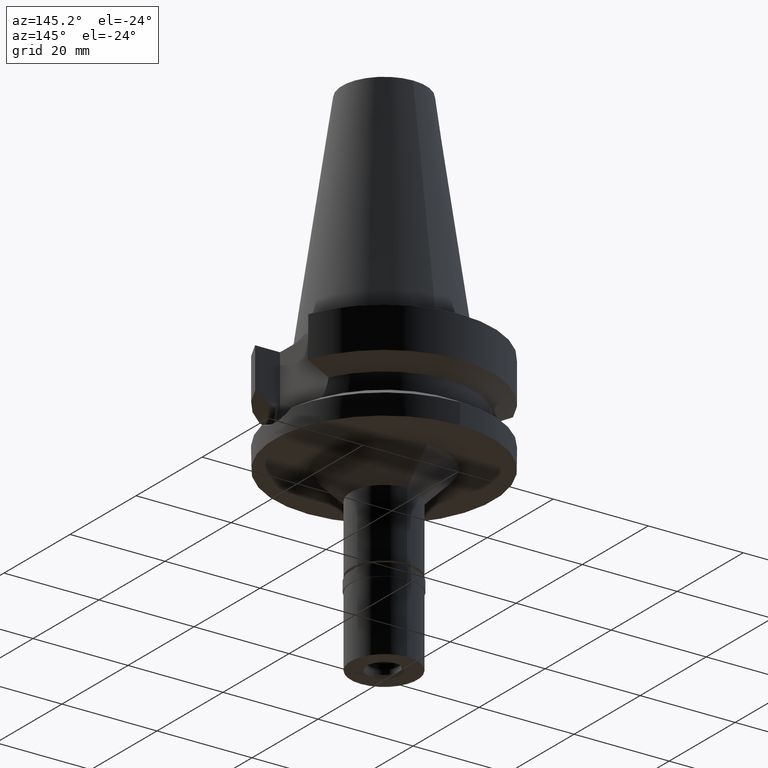
[diagram: clean part render]
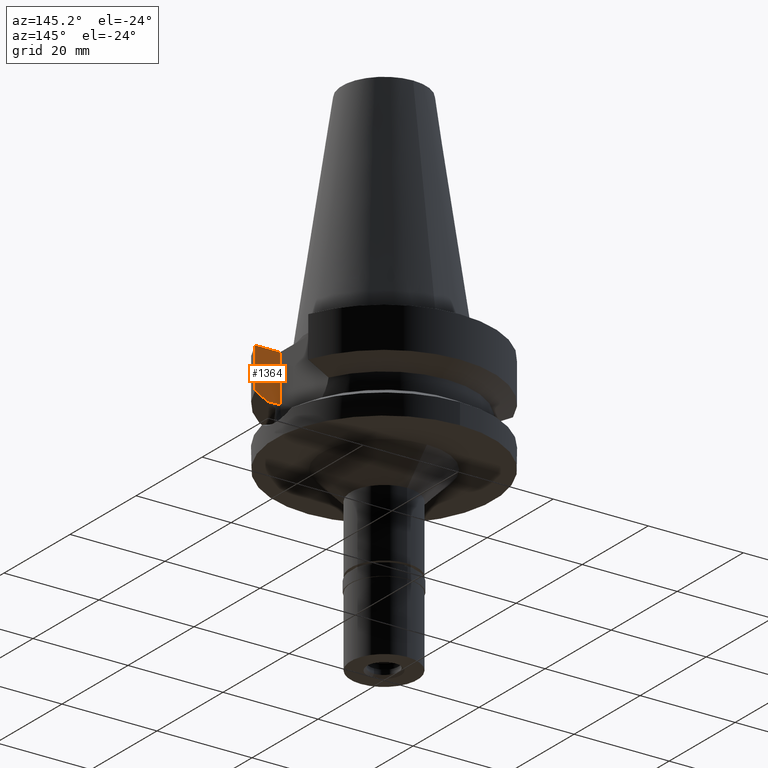
[diagram: same view with one face highlighted and labeled with its STEP entity id]
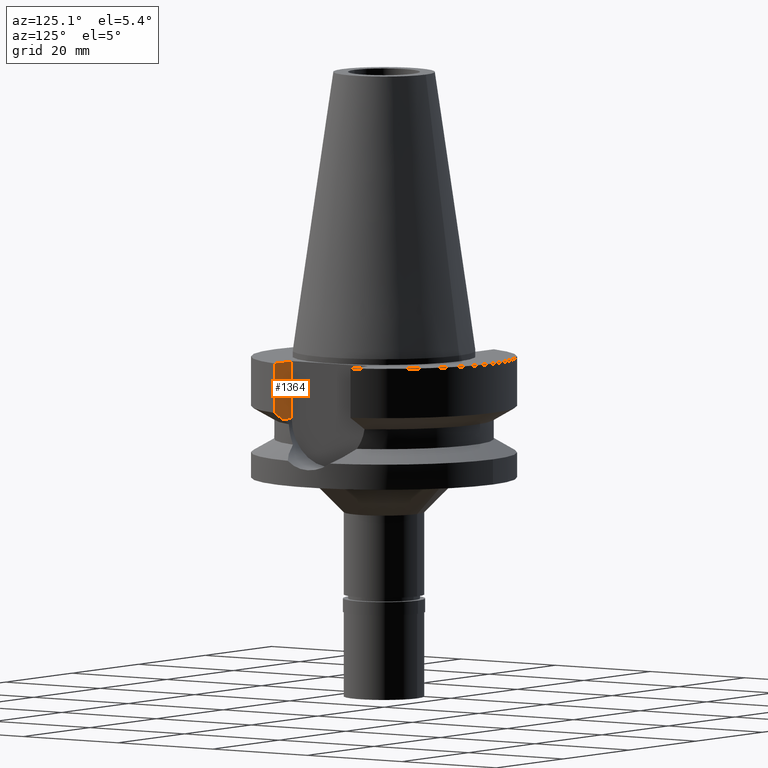
[diagram: same view with one face highlighted and labeled with its STEP entity id]
A machine part, auxiliary view. The second image highlights one B-rep face of the part: STEP entity #1364.
A second angle (auxiliary view) of the same face is appended — the face is thin or edge-on in the first view.
In plain terms, the highlighted planar face has unit normal (0, -1, 0).
Its self-contained STEP definition (entity closure, byte-faithful):
#58 = VECTOR ( 'NONE', #652, 1000.000000000000227 ) ;
#341 = PLANE ( 'NONE',  #821 ) ;
#401 = CARTESIAN_POINT ( 'NONE',  ( 16.29999999999999716, -8.050000000000000711, -1.000000000000000000 ) ) ;
#406 = VERTEX_POINT ( 'NONE', #1494 ) ;
#519 = LINE ( 'NONE', #401, #2084 ) ;
#527 = CARTESIAN_POINT ( 'NONE',  ( 21.54715579650000024, -8.050000000000000711, -1.000000000000000000 ) ) ;
#563 = ORIENTED_EDGE ( 'NONE', *, *, #2812, .T. ) ;
#578 = EDGE_CURVE ( 'NONE', #1314, #1425, #1211, .T. ) ;
#628 = CARTESIAN_POINT ( 'NONE',  ( 21.54715579650000024, -8.050000000000000711, -9.567208369710998639 ) ) ;
#652 = DIRECTION ( 'NONE',  ( -0.9999999999998817612, 4.787399937350908582E-07, -8.413513955626847325E-08 ) ) ;
#780 = CARTESIAN_POINT ( 'NONE',  ( 21.54715579650000024, -8.050000000000000711, -9.567208369710998639 ) ) ;
#821 = AXIS2_PLACEMENT_3D ( 'NONE', #2663, #2148, #2881 ) ;
#833 = CARTESIAN_POINT ( 'NONE',  ( 18.96930827810999887, -8.050001277905000308, -10.94999977541999847 ) ) ;
#840 = VECTOR ( 'NONE', #2364, 1000.000000000000000 ) ;
#989 = EDGE_CURVE ( 'NONE', #2257, #1604, #2214, .T. ) ;
#1010 = CARTESIAN_POINT ( 'NONE',  ( 16.29999999999999716, -8.050000000000000711, -1.000000000000000000 ) ) ;
#1033 = EDGE_LOOP ( 'NONE', ( #563, #1177, #2801, #1227, #1734 ) ) ;
#1034 = CARTESIAN_POINT ( 'NONE',  ( 19.78370350314376935, -8.050001299768915430, -10.51717019556136457 ) ) ;
#1044 = DIRECTION ( 'NONE',  ( 1.000000000000000000, 0.0000000000000000000, 0.0000000000000000000 ) ) ;
#1177 = ORIENTED_EDGE ( 'NONE', *, *, #578, .T. ) ;
#1211 = LINE ( 'NONE', #1697, #840 ) ;
#1227 = ORIENTED_EDGE ( 'NONE', *, *, #989, .T. ) ;
#1314 = VERTEX_POINT ( 'NONE', #2774 ) ;
#1361 = CARTESIAN_POINT ( 'NONE',  ( 21.54715579650000024, -8.050000000000000711, -1.000000000000000000 ) ) ;
#1364 = ADVANCED_FACE ( 'NONE', ( #2807 ), #341, .F. ) ;
#1425 = VERTEX_POINT ( 'NONE', #1010 ) ;
#1489 = B_SPLINE_CURVE_WITH_KNOTS ( 'NONE', 3,
 ( #833, #1034, #2830, #628 ),
 .UNSPECIFIED., .F., .F.,
 ( 4, 4 ),
 ( 0.0000000000000000000, 1.000000000000000000 ),
 .UNSPECIFIED. ) ;
#1494 = CARTESIAN_POINT ( 'NONE',  ( 18.96930827810999887, -8.050001277905000308, -10.94999977541999847 ) ) ;
#1509 = LINE ( 'NONE', #1988, #58 ) ;
#1604 = VERTEX_POINT ( 'NONE', #780 ) ;
#1697 = CARTESIAN_POINT ( 'NONE',  ( 16.29999999999999716, -8.050000000000000711, -10.94999999999999929 ) ) ;
#1734 = ORIENTED_EDGE ( 'NONE', *, *, #2091, .F. ) ;
#1952 = EDGE_CURVE ( 'NONE', #1425, #2257, #519, .T. ) ;
#1988 = CARTESIAN_POINT ( 'NONE',  ( 18.96930827810999887, -8.050001277905000308, -10.94999977541999847 ) ) ;
#2084 = VECTOR ( 'NONE', #1044, 1000.000000000000000 ) ;
#2091 = EDGE_CURVE ( 'NONE', #406, #1604, #1489, .T. ) ;
#2148 = DIRECTION ( 'NONE',  ( 0.0000000000000000000, -1.000000000000000000, 0.0000000000000000000 ) ) ;
#2214 = LINE ( 'NONE', #1361, #2294 ) ;
#2257 = VERTEX_POINT ( 'NONE', #527 ) ;
#2294 = VECTOR ( 'NONE', #2692, 1000.000000000000114 ) ;
#2364 = DIRECTION ( 'NONE',  ( 0.0000000000000000000, 0.0000000000000000000, 1.000000000000000000 ) ) ;
#2663 = CARTESIAN_POINT ( 'NONE',  ( 16.29999999999999716, -8.050000000000000711, -1.000000000000000000 ) ) ;
#2692 = DIRECTION ( 'NONE',  ( -9.129686183793688433E-08, -2.443710705671914470E-07, -0.9999999999999659162 ) ) ;
#2774 = CARTESIAN_POINT ( 'NONE',  ( 16.29999999999999716, -8.050000000000000711, -10.94999999999999929 ) ) ;
#2801 = ORIENTED_EDGE ( 'NONE', *, *, #1952, .T. ) ;
#2807 = FACE_OUTER_BOUND ( 'NONE', #1033, .T. ) ;
#2812 = EDGE_CURVE ( 'NONE', #406, #1314, #1509, .T. ) ;
#2830 = CARTESIAN_POINT ( 'NONE',  ( 20.64294517900100701, -8.050004183286992188, -10.05623947173488197 ) ) ;
#2881 = DIRECTION ( 'NONE',  ( 0.0000000000000000000, 0.0000000000000000000, -1.000000000000000000 ) ) ;